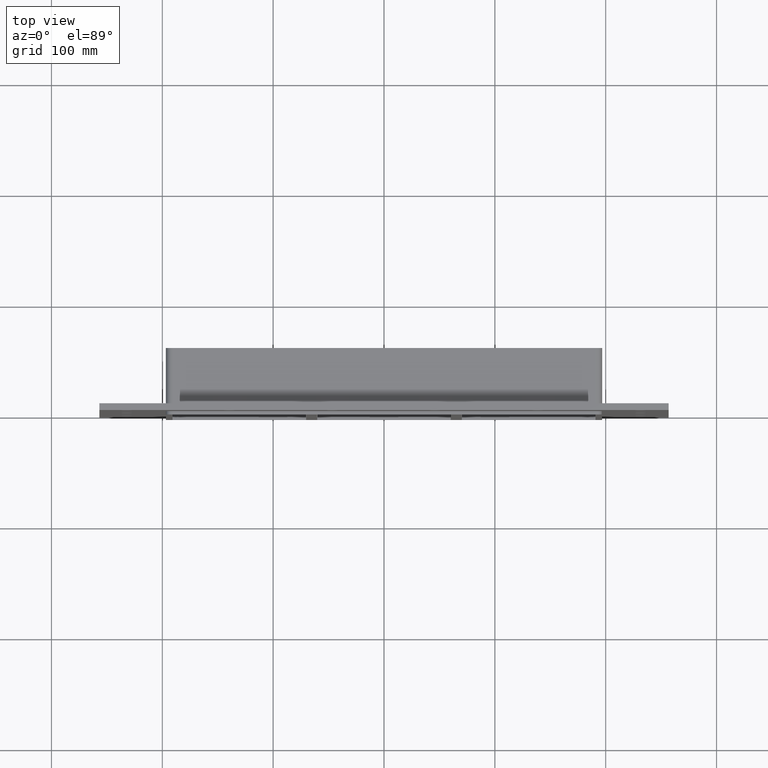
[diagram: clean part render]
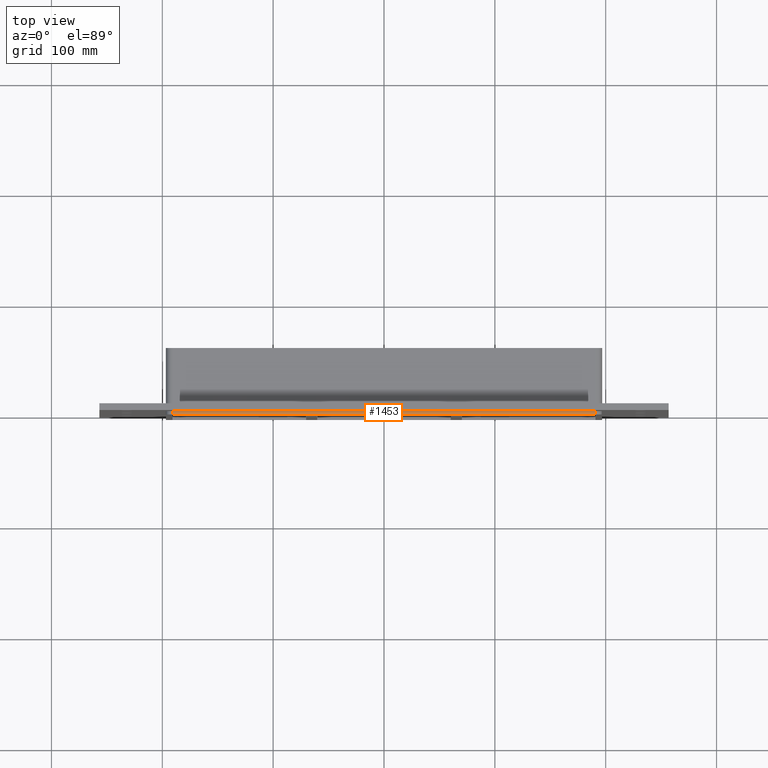
[diagram: same view with one face highlighted and labeled with its STEP entity id]
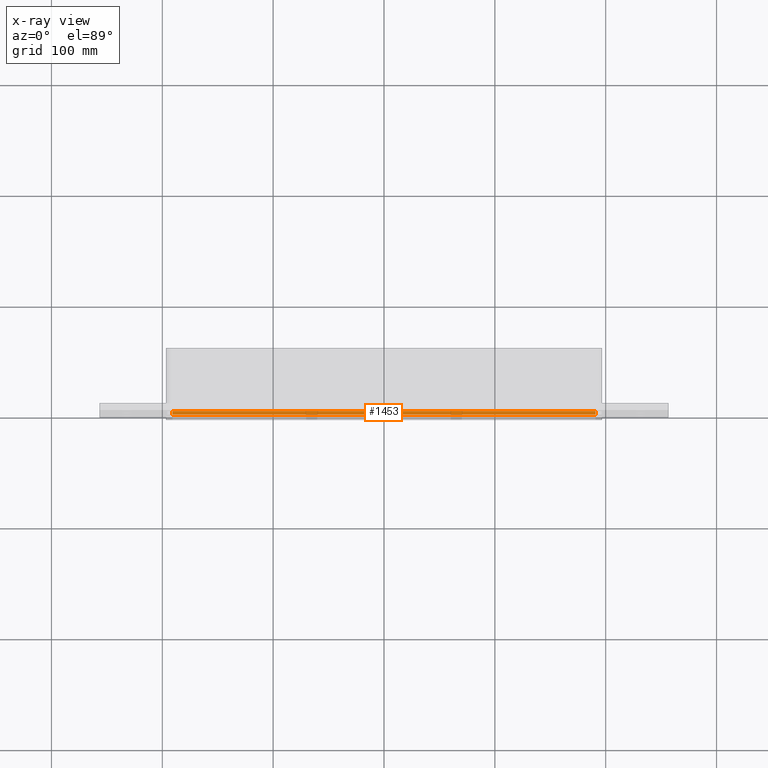
[diagram: x-ray of the same camera — body ghosted, the highlighted face saturated]
A machine part, top view. The second image highlights one B-rep face of the part: STEP entity #1453.
The next image is the same camera in x-ray: the body ghosted, the highlighted face saturated — about 0% of this face is hidden behind the body in this view.
In plain terms, the highlighted planar face has unit normal (0, 0, 1).
Its self-contained STEP definition (entity closure, byte-faithful):
#1176=CARTESIAN_POINT('',(-190.75000000000003,0.0,145.0));
#1177=VERTEX_POINT('',#1176);
#1185=CARTESIAN_POINT('',(190.75000000000003,0.0,145.0));
#1186=VERTEX_POINT('',#1185);
#1187=CARTESIAN_POINT('',(190.75,0.0,145.0));
#1188=DIRECTION('',(-1.0,0.0,0.0));
#1189=VECTOR('',#1188,381.5);
#1190=LINE('',#1187,#1189);
#1191=EDGE_CURVE('',#1186,#1177,#1190,.T.);
#1324=CARTESIAN_POINT('',(190.75000000000003,-3.0,145.0));
#1325=VERTEX_POINT('',#1324);
#1326=CARTESIAN_POINT('',(190.75000000000003,0.0,145.0));
#1327=DIRECTION('',(0.0,-1.0,0.0));
#1328=VECTOR('',#1327,3.0);
#1329=LINE('',#1326,#1328);
#1330=EDGE_CURVE('',#1186,#1325,#1329,.T.);
#1430=CARTESIAN_POINT('',(-196.75000000000006,0.0,145.0));
#1431=DIRECTION('',(0.0,0.0,1.0));
#1432=DIRECTION('',(1.0,0.0,0.0));
#1433=AXIS2_PLACEMENT_3D('',#1430,#1431,#1432);
#1434=PLANE('',#1433);
#1435=ORIENTED_EDGE('',*,*,#1191,.T.);
#1436=CARTESIAN_POINT('',(-190.75000000000003,-3.0,145.0));
#1437=VERTEX_POINT('',#1436);
#1438=CARTESIAN_POINT('',(-190.75000000000003,-3.0,145.0));
#1439=DIRECTION('',(0.0,1.0,0.0));
#1440=VECTOR('',#1439,3.0);
#1441=LINE('',#1438,#1440);
#1442=EDGE_CURVE('',#1437,#1177,#1441,.T.);
#1443=ORIENTED_EDGE('',*,*,#1442,.F.);
#1444=CARTESIAN_POINT('',(190.75,-3.0,145.0));
#1445=DIRECTION('',(-1.0,0.0,0.0));
#1446=VECTOR('',#1445,381.50000000000006);
#1447=LINE('',#1444,#1446);
#1448=EDGE_CURVE('',#1325,#1437,#1447,.T.);
#1449=ORIENTED_EDGE('',*,*,#1448,.F.);
#1450=ORIENTED_EDGE('',*,*,#1330,.F.);
#1451=EDGE_LOOP('',(#1435,#1443,#1449,#1450));
#1452=FACE_OUTER_BOUND('',#1451,.T.);
#1453=ADVANCED_FACE('',(#1452),#1434,.T.);